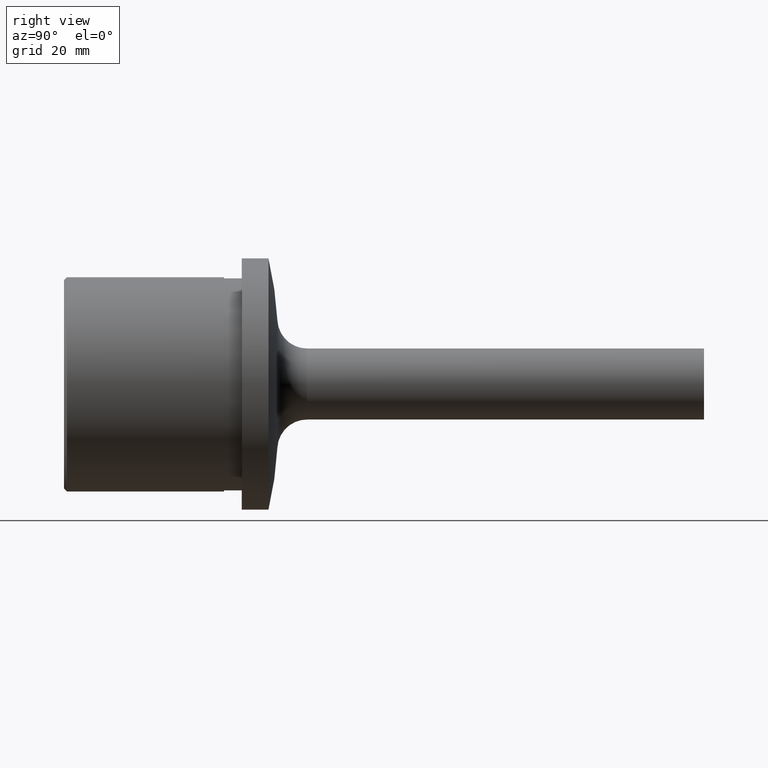
[diagram: clean part render]
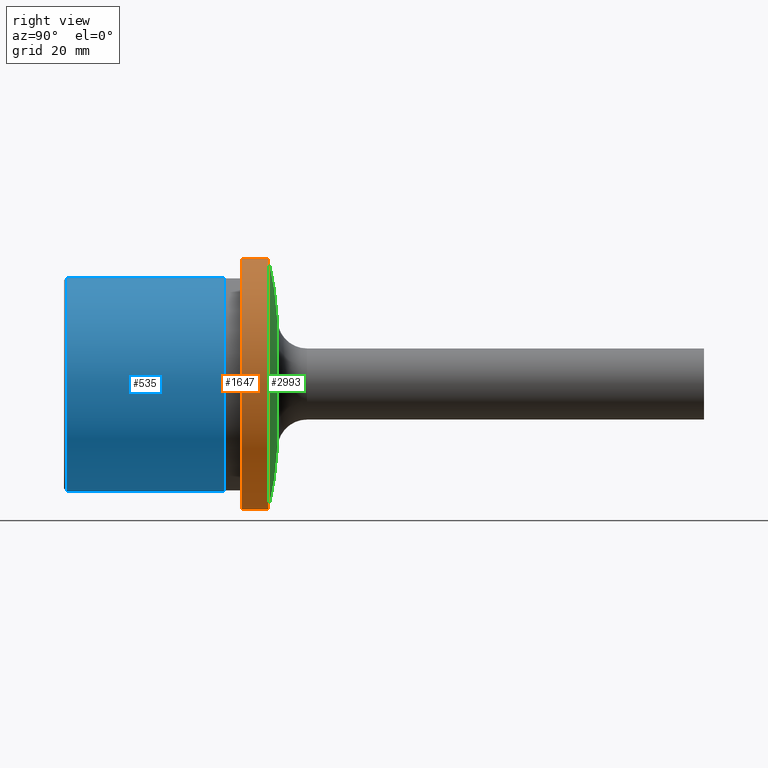
[diagram: same view with three faces highlighted in distinct colors, each labeled with its STEP entity id]
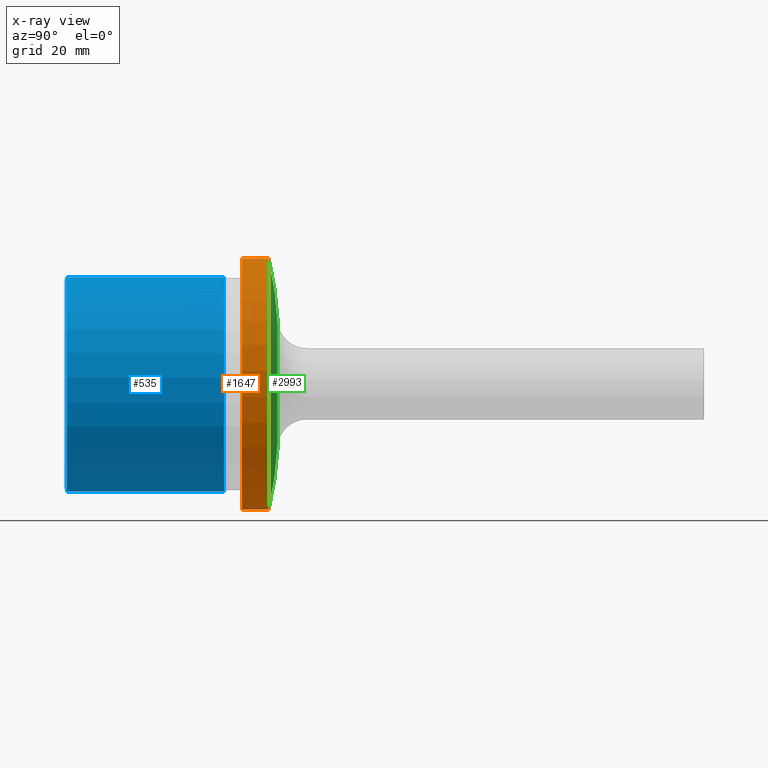
[diagram: x-ray of the same camera — body ghosted, the three highlighted faces saturated]
A machine part, right view with three faces highlighted in distinct colors.
The next image is the same camera in x-ray (body ghosted, the three faces saturated) — at least one of them is partly hidden behind the body in this view.
Their STEP definitions:

[orange] entity #1647 — the highlighted cylindrical surface (bore or boss wall) has radius 21.2 mm, axis along (-0, -1, -0).
#2 = CYLINDRICAL_SURFACE ( 'NONE', #15915, 21.20000000000000284 ) ;
#315 = DIRECTION ( 'NONE',  ( -0.000000000000000000, -1.000000000000000000, -0.000000000000000000 ) ) ;
#1647 = ADVANCED_FACE ( 'NONE', ( #2419, #4589 ), #2, .T. ) ;
#2212 = EDGE_CURVE ( 'NONE', #17102, #17102, #15291, .T. ) ;
#2419 = FACE_OUTER_BOUND ( 'NONE', #18626, .T. ) ;
#3198 = EDGE_LOOP ( 'NONE', ( #12083 ) ) ;
#3449 = AXIS2_PLACEMENT_3D ( 'NONE', #6411, #4817, #22154 ) ;
#4410 = AXIS2_PLACEMENT_3D ( 'NONE', #19492, #315, #5676 ) ;
#4589 = FACE_OUTER_BOUND ( 'NONE', #3198, .T. ) ;
#4748 = DIRECTION ( 'NONE',  ( 0.000000000000000000, 0.000000000000000000, -1.000000000000000000 ) ) ;
#4817 = DIRECTION ( 'NONE',  ( -0.000000000000000000, -1.000000000000000000, -0.000000000000000000 ) ) ;
#4827 = CIRCLE ( 'NONE', #4410, 21.20000000000000284 ) ;
#5676 = DIRECTION ( 'NONE',  ( 0.000000000000000000, 0.000000000000000000, -1.000000000000000000 ) ) ;
#6411 = CARTESIAN_POINT ( 'NONE',  ( 0.000000000000000000, 30.00000000000000355, 0.000000000000000000 ) ) ;
#12083 = ORIENTED_EDGE ( 'NONE', *, *, #2212, .F. ) ;
#12156 = ORIENTED_EDGE ( 'NONE', *, *, #12316, .T. ) ;
#12316 = EDGE_CURVE ( 'NONE', #16828, #16828, #4827, .T. ) ;
#14799 = CARTESIAN_POINT ( 'NONE',  ( 0.000000000000000000, 32.00000000000000000, 0.000000000000000000 ) ) ;
#15291 = CIRCLE ( 'NONE', #3449, 21.19999999999999929 ) ;
#15915 = AXIS2_PLACEMENT_3D ( 'NONE', #14799, #17965, #4748 ) ;
#16828 = VERTEX_POINT ( 'NONE', #21161 ) ;
#17102 = VERTEX_POINT ( 'NONE', #19552 ) ;
#17965 = DIRECTION ( 'NONE',  ( -0.000000000000000000, -1.000000000000000000, -0.000000000000000000 ) ) ;
#18626 = EDGE_LOOP ( 'NONE', ( #12156 ) ) ;
#19492 = CARTESIAN_POINT ( 'NONE',  ( 0.000000000000000000, 34.50000000000000000, 0.000000000000000000 ) ) ;
#19552 = CARTESIAN_POINT ( 'NONE',  ( 0.000000000000000000, 30.00000000000000355, -21.19999999999999929 ) ) ;
#21161 = CARTESIAN_POINT ( 'NONE',  ( 0.000000000000000000, 34.50000000000000000, -21.20000000000000284 ) ) ;
#22154 = DIRECTION ( 'NONE',  ( 0.000000000000000000, 0.000000000000000000, -1.000000000000000000 ) ) ;

[blue] entity #535 — the highlighted cylindrical surface (bore or boss wall) has radius 18.15 mm, axis along (-0, -1, -0).
#535 = ADVANCED_FACE ( 'NONE', ( #11903, #21942 ), #2721, .T. ) ;
#1129 = ORIENTED_EDGE ( 'NONE', *, *, #3478, .T. ) ;
#1904 = CARTESIAN_POINT ( 'NONE',  ( 0.000000000000000000, 0.5000000000000004441, 0.000000000000000000 ) ) ;
#2258 = DIRECTION ( 'NONE',  ( -0.000000000000000000, -1.000000000000000000, -0.000000000000000000 ) ) ;
#2721 = CYLINDRICAL_SURFACE ( 'NONE', #9423, 18.14999999999999858 ) ;
#3478 = EDGE_CURVE ( 'NONE', #8717, #8717, #16383, .T. ) ;
#3633 = DIRECTION ( 'NONE',  ( 0.000000000000000000, 0.000000000000000000, -1.000000000000000000 ) ) ;
#3751 = CARTESIAN_POINT ( 'NONE',  ( 0.000000000000000000, 27.00000000000000000, -18.14999999999999858 ) ) ;
#4949 = CARTESIAN_POINT ( 'NONE',  ( 0.000000000000000000, 32.00000000000000000, 0.000000000000000000 ) ) ;
#5096 = DIRECTION ( 'NONE',  ( -0.000000000000000000, -1.000000000000000000, -0.000000000000000000 ) ) ;
#5581 = DIRECTION ( 'NONE',  ( 0.000000000000000000, 0.000000000000000000, -1.000000000000000000 ) ) ;
#5666 = CARTESIAN_POINT ( 'NONE',  ( 0.000000000000000000, 27.00000000000000000, 0.000000000000000000 ) ) ;
#5852 = EDGE_CURVE ( 'NONE', #22286, #22286, #9851, .T. ) ;
#7367 = ORIENTED_EDGE ( 'NONE', *, *, #5852, .F. ) ;
#8690 = EDGE_LOOP ( 'NONE', ( #1129 ) ) ;
#8717 = VERTEX_POINT ( 'NONE', #3751 ) ;
#9208 = CARTESIAN_POINT ( 'NONE',  ( 0.000000000000000000, 0.5000000000000004441, -18.15000000000000213 ) ) ;
#9423 = AXIS2_PLACEMENT_3D ( 'NONE', #4949, #5096, #15378 ) ;
#9851 = CIRCLE ( 'NONE', #13330, 18.15000000000000213 ) ;
#11903 = FACE_OUTER_BOUND ( 'NONE', #8690, .T. ) ;
#13238 = EDGE_LOOP ( 'NONE', ( #7367 ) ) ;
#13330 = AXIS2_PLACEMENT_3D ( 'NONE', #1904, #14287, #3633 ) ;
#14287 = DIRECTION ( 'NONE',  ( -0.000000000000000000, -1.000000000000000000, -0.000000000000000000 ) ) ;
#15378 = DIRECTION ( 'NONE',  ( 0.000000000000000000, 0.000000000000000000, -1.000000000000000000 ) ) ;
#16383 = CIRCLE ( 'NONE', #19708, 18.14999999999999858 ) ;
#19708 = AXIS2_PLACEMENT_3D ( 'NONE', #5666, #2258, #5581 ) ;
#21942 = FACE_OUTER_BOUND ( 'NONE', #13238, .T. ) ;
#22286 = VERTEX_POINT ( 'NONE', #9208 ) ;

[green] entity #2993 — the highlighted toroidal blend (fillet) surface has major radius 7.7091 mm and minor (blend) radius 58.18 mm.
#315 = DIRECTION ( 'NONE',  ( -0.000000000000000000, -1.000000000000000000, -0.000000000000000000 ) ) ;
#1492 = CIRCLE ( 'NONE', #4507, 10.73955900441978883 ) ;
#2993 = ADVANCED_FACE ( 'NONE', ( #3141, #21019 ), #5040, .T. ) ;
#3141 = FACE_OUTER_BOUND ( 'NONE', #4715, .T. ) ;
#4410 = AXIS2_PLACEMENT_3D ( 'NONE', #19492, #315, #5676 ) ;
#4421 = EDGE_CURVE ( 'NONE', #16035, #16035, #1492, .T. ) ;
#4507 = AXIS2_PLACEMENT_3D ( 'NONE', #6008, #20060, #21672 ) ;
#4715 = EDGE_LOOP ( 'NONE', ( #9668 ) ) ;
#4827 = CIRCLE ( 'NONE', #4410, 21.20000000000000284 ) ;
#5040 = TOROIDAL_SURFACE ( 'NONE', #19249, 7.709067579848301044, 58.17999999999999972 ) ;
#5676 = DIRECTION ( 'NONE',  ( 0.000000000000000000, 0.000000000000000000, -1.000000000000000000 ) ) ;
#6008 = CARTESIAN_POINT ( 'NONE',  ( 0.000000000000000000, 36.00678755831265931, 0.000000000000000000 ) ) ;
#9668 = ORIENTED_EDGE ( 'NONE', *, *, #4421, .T. ) ;
#10044 = DIRECTION ( 'NONE',  ( -0.000000000000000000, -1.000000000000000000, -0.000000000000000000 ) ) ;
#11854 = CARTESIAN_POINT ( 'NONE',  ( 0.000000000000000000, -22.09423241316115494, 0.000000000000000000 ) ) ;
#12316 = EDGE_CURVE ( 'NONE', #16828, #16828, #4827, .T. ) ;
#13500 = DIRECTION ( 'NONE',  ( 0.000000000000000000, 0.000000000000000000, -1.000000000000000000 ) ) ;
#15914 = CARTESIAN_POINT ( 'NONE',  ( 0.000000000000000000, 36.00678755831265931, -10.73955900441978883 ) ) ;
#16035 = VERTEX_POINT ( 'NONE', #15914 ) ;
#16828 = VERTEX_POINT ( 'NONE', #21161 ) ;
#19249 = AXIS2_PLACEMENT_3D ( 'NONE', #11854, #10044, #13500 ) ;
#19492 = CARTESIAN_POINT ( 'NONE',  ( 0.000000000000000000, 34.50000000000000000, 0.000000000000000000 ) ) ;
#20060 = DIRECTION ( 'NONE',  ( -0.000000000000000000, -1.000000000000000000, -0.000000000000000000 ) ) ;
#20783 = EDGE_LOOP ( 'NONE', ( #21017 ) ) ;
#21017 = ORIENTED_EDGE ( 'NONE', *, *, #12316, .F. ) ;
#21019 = FACE_OUTER_BOUND ( 'NONE', #20783, .T. ) ;
#21161 = CARTESIAN_POINT ( 'NONE',  ( 0.000000000000000000, 34.50000000000000000, -21.20000000000000284 ) ) ;
#21672 = DIRECTION ( 'NONE',  ( 0.000000000000000000, 0.000000000000000000, -1.000000000000000000 ) ) ;